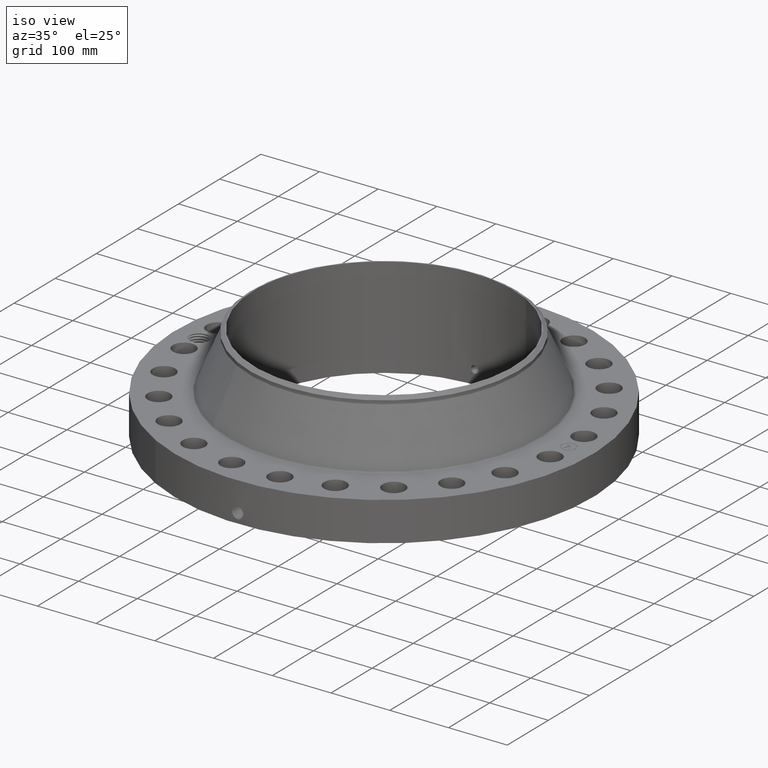
[diagram: clean part render]
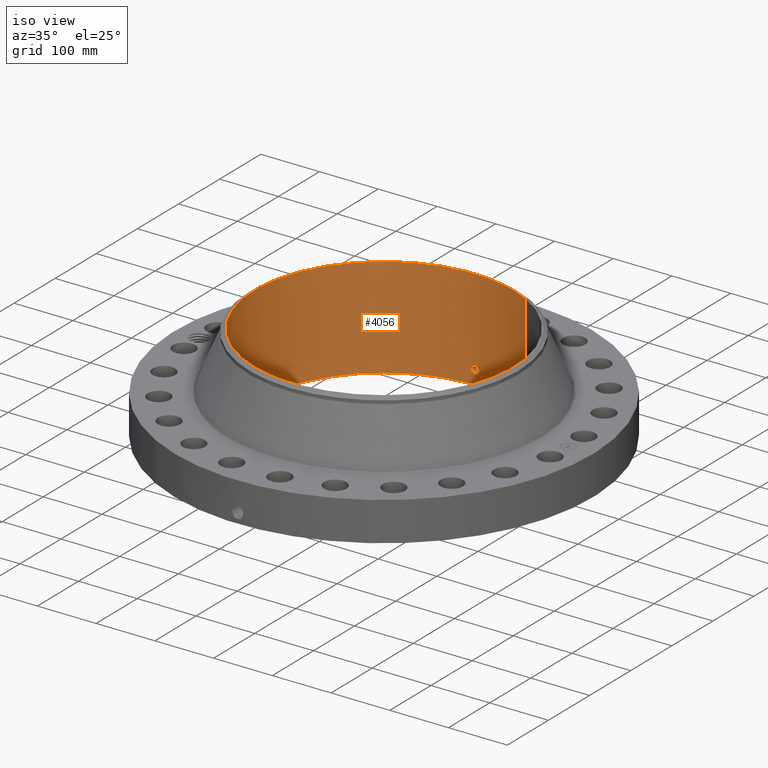
[diagram: same view with one face highlighted and labeled with its STEP entity id]
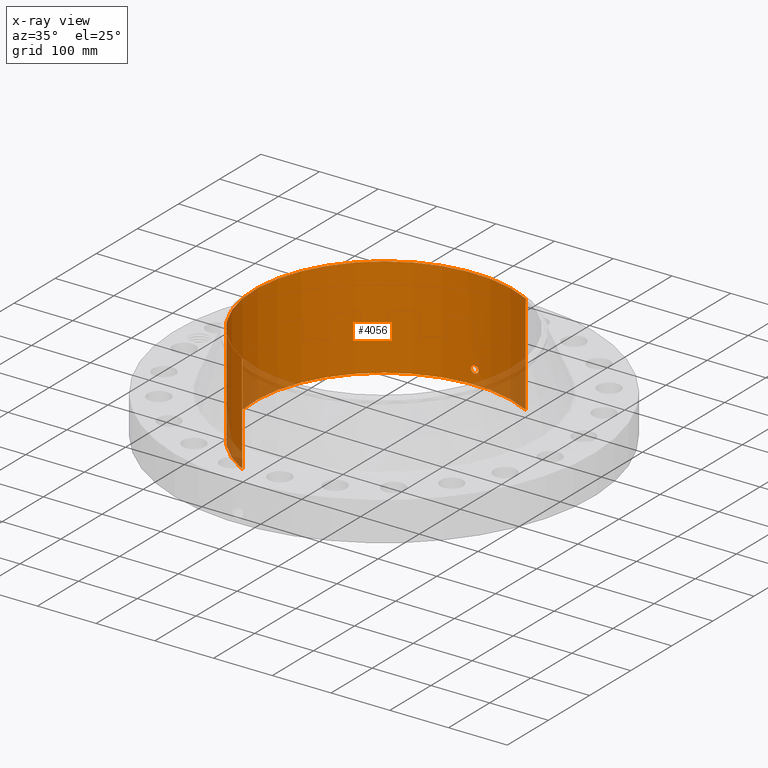
[diagram: x-ray of the same camera — body ghosted, the highlighted face saturated]
A machine part, iso view. The second image highlights one B-rep face of the part: STEP entity #4056.
The next image is the same camera in x-ray: the body ghosted, the highlighted face saturated — about 8% of this face is hidden behind the body in this view.
In plain terms, the highlighted cylindrical surface (partial cylindrical patch) has radius 220.675 mm, axis along (0, 0, -1).
Its self-contained STEP definition (entity closure, byte-faithful):
#3199=AXIS2_PLACEMENT_3D('Circle Axis2P3D',#3197,#3198,$) ;
#3933=AXIS2_PLACEMENT_3D('Cylinder Axis2P3D',#3930,#3931,#3932) ;
#4005=AXIS2_PLACEMENT_3D('Circle Axis2P3D',#4003,#4004,$) ;
#3192=CARTESIAN_POINT('Vertex',(4.16524907941,7.62443729773,-4.53180799973E-014)) ;
#3194=CARTESIAN_POINT('Vertex',(-4.16524907941,-7.62443729773,-4.53180799973E-014)) ;
#3197=CARTESIAN_POINT('Axis2P3D Location',(0.,0.,0.)) ;
#3930=CARTESIAN_POINT('Axis2P3D Location',(0.,0.,3.37500000001)) ;
#3939=CARTESIAN_POINT('Vertex',(4.16524907941,7.62443729773,6.75000000003)) ;
#3941=CARTESIAN_POINT('Vertex',(-4.16524907941,-7.62443729773,6.75000000003)) ;
#3944=CARTESIAN_POINT('Line Origine',(4.16524907941,7.62443729773,3.37500000001)) ;
#3949=CARTESIAN_POINT('Line Origine',(-4.16524907941,-7.62443729773,3.37500000001)) ;
#4003=CARTESIAN_POINT('Axis2P3D Location',(0.,0.,6.75000000003)) ;
#4015=CARTESIAN_POINT('Control Point',(0.219395640473,8.68522938981,1.05985638466)) ;
#4016=CARTESIAN_POINT('Control Point',(0.194443080738,8.68585971085,1.10553173888)) ;
#4017=CARTESIAN_POINT('Control Point',(0.157605502181,8.68670058901,1.14471128609)) ;
#4018=CARTESIAN_POINT('Control Point',(0.111108605047,8.68751836769,1.17324283931)) ;
#4019=CARTESIAN_POINT('Control Point',(0.0336739298764,8.68816902156,1.1958824999)) ;
#4020=CARTESIAN_POINT('Control Point',(-0.044670603159,8.68794418421,1.18805643729)) ;
#4021=CARTESIAN_POINT('Control Point',(-0.0703002279646,8.68776964115,1.18204390443)) ;
#4022=CARTESIAN_POINT('Control Point',(-0.14395619603,8.68699831959,1.15421216612)) ;
#4023=CARTESIAN_POINT('Control Point',(-0.203243666028,8.68573929658,1.0994980485)) ;
#4024=CARTESIAN_POINT('Control Point',(-0.232209097937,8.68491350927,1.0532592554)) ;
#4025=CARTESIAN_POINT('Control Point',(-0.255840414407,8.68423464792,0.975112375905)) ;
#4026=CARTESIAN_POINT('Control Point',(-0.248282950281,8.6844515743,0.89574742069)) ;
#4027=CARTESIAN_POINT('Control Point',(-0.242049169645,8.6846331045,0.869184659173)) ;
#4028=CARTESIAN_POINT('Control Point',(-0.232315579083,8.68490302212,0.843793404341)) ;
#4029=CARTESIAN_POINT('Control Point',(-0.219395640473,8.68522938981,0.820143615352)) ;
#4030=CARTESIAN_POINT('Vertex',(0.219395640473,8.68522938981,1.05985638466)) ;
#4032=CARTESIAN_POINT('Vertex',(-0.219395640473,8.68522938981,0.820143615352)) ;
#4036=CARTESIAN_POINT('Control Point',(-0.219395640473,8.68522938981,0.820143615352)) ;
#4037=CARTESIAN_POINT('Control Point',(-0.194443080718,8.68585971085,0.774468261095)) ;
#4038=CARTESIAN_POINT('Control Point',(-0.157605502123,8.68670058901,0.735288713857)) ;
#4039=CARTESIAN_POINT('Control Point',(-0.111108605132,8.68751836769,0.706757160719)) ;
#4040=CARTESIAN_POINT('Control Point',(-0.0336739299203,8.68816902156,0.684117500103)) ;
#4041=CARTESIAN_POINT('Control Point',(0.0446706031574,8.68794418421,0.691943562719)) ;
#4042=CARTESIAN_POINT('Control Point',(0.070300227961,8.68776964115,0.697956095578)) ;
#4043=CARTESIAN_POINT('Control Point',(0.143956195935,8.68699831959,0.72578783385)) ;
#4044=CARTESIAN_POINT('Control Point',(0.20324366588,8.68573929659,0.780501951372)) ;
#4045=CARTESIAN_POINT('Control Point',(0.232209097993,8.68491350927,0.826740744792)) ;
#4046=CARTESIAN_POINT('Control Point',(0.255840414408,8.68423464792,0.904887624233)) ;
#4047=CARTESIAN_POINT('Control Point',(0.248282950274,8.6844515743,0.984252579389)) ;
#4048=CARTESIAN_POINT('Control Point',(0.242049169672,8.68463310449,1.01081534076)) ;
#4049=CARTESIAN_POINT('Control Point',(0.2323155791,8.68490302212,1.03620659563)) ;
#4050=CARTESIAN_POINT('Control Point',(0.219395640473,8.68522938981,1.05985638466)) ;
#3198=DIRECTION('Axis2P3D Direction',(0.,0.,-0.0393700787402)) ;
#3931=DIRECTION('Axis2P3D Direction',(0.,0.,-0.0393700787402)) ;
#3932=DIRECTION('Axis2P3D XDirection',(-0.0188750212049,-0.0345504945626,0.)) ;
#3945=DIRECTION('Vector Direction',(0.,0.,-0.0393700787402)) ;
#3950=DIRECTION('Vector Direction',(0.,0.,-0.0393700787402)) ;
#4004=DIRECTION('Axis2P3D Direction',(0.,0.,-0.0393700787402)) ;
#3946=VECTOR('Line Direction',#3945,0.0393700787402) ;
#3951=VECTOR('Line Direction',#3950,0.0393700787402) ;
#4009=ORIENTED_EDGE('',*,*,#4007,.F.) ;
#4010=ORIENTED_EDGE('',*,*,#3953,.T.) ;
#4011=ORIENTED_EDGE('',*,*,#3201,.T.) ;
#4012=ORIENTED_EDGE('',*,*,#3948,.F.) ;
#4053=ORIENTED_EDGE('',*,*,#4034,.F.) ;
#4054=ORIENTED_EDGE('',*,*,#4051,.F.) ;
#4055=FACE_BOUND('',#4052,.T.) ;
#4056=ADVANCED_FACE('PartBody',(#4013,#4055),#3934,.F.) ;
#4014=B_SPLINE_CURVE_WITH_KNOTS('',5,(#4015,#4016,#4017,#4018,#4019,#4020,#4021,#4022,#4023,#4024,#4025,#4026,#4027,#4028,#4029),.UNSPECIFIED.,.F.,.U.,(6,3,3,3,6),(0.,9.34855535961,14.0228541737,23.3728900099,28.2133858392),.UNSPECIFIED.) ;
#4035=B_SPLINE_CURVE_WITH_KNOTS('',5,(#4036,#4037,#4038,#4039,#4040,#4041,#4042,#4043,#4044,#4045,#4046,#4047,#4048,#4049,#4050),.UNSPECIFIED.,.F.,.U.,(6,3,3,3,6),(0.,9.34855536706,14.0228541813,23.3728900001,28.213385836),.UNSPECIFIED.) ;
#3200=CIRCLE('generated circle',#3199,8.68800000003) ;
#4006=CIRCLE('generated circle',#4005,8.68800000003) ;
#3934=CYLINDRICAL_SURFACE('generated cylinder',#3933,8.68800000003) ;
#3201=EDGE_CURVE('',#3195,#3193,#3200,.T.) ;
#3948=EDGE_CURVE('',#3940,#3193,#3947,.T.) ;
#3953=EDGE_CURVE('',#3942,#3195,#3952,.T.) ;
#4007=EDGE_CURVE('',#3942,#3940,#4006,.T.) ;
#4034=EDGE_CURVE('',#4031,#4033,#4014,.T.) ;
#4051=EDGE_CURVE('',#4033,#4031,#4035,.T.) ;
#4008=EDGE_LOOP('',(#4009,#4010,#4011,#4012)) ;
#4052=EDGE_LOOP('',(#4053,#4054)) ;
#4013=FACE_OUTER_BOUND('',#4008,.T.) ;
#3947=LINE('Line',#3944,#3946) ;
#3952=LINE('Line',#3949,#3951) ;
#3193=VERTEX_POINT('',#3192) ;
#3195=VERTEX_POINT('',#3194) ;
#3940=VERTEX_POINT('',#3939) ;
#3942=VERTEX_POINT('',#3941) ;
#4031=VERTEX_POINT('',#4030) ;
#4033=VERTEX_POINT('',#4032) ;